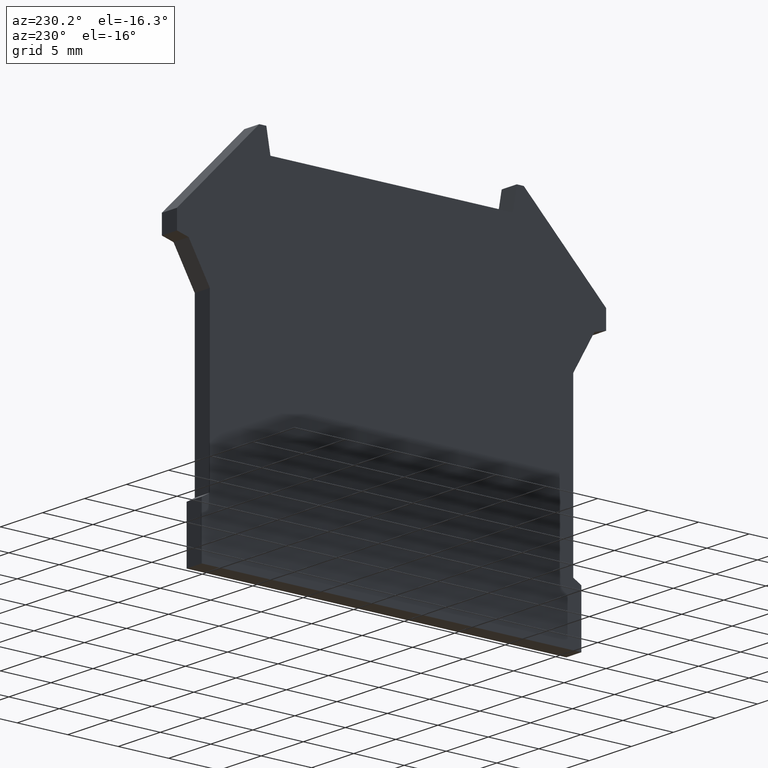
[diagram: clean part render]
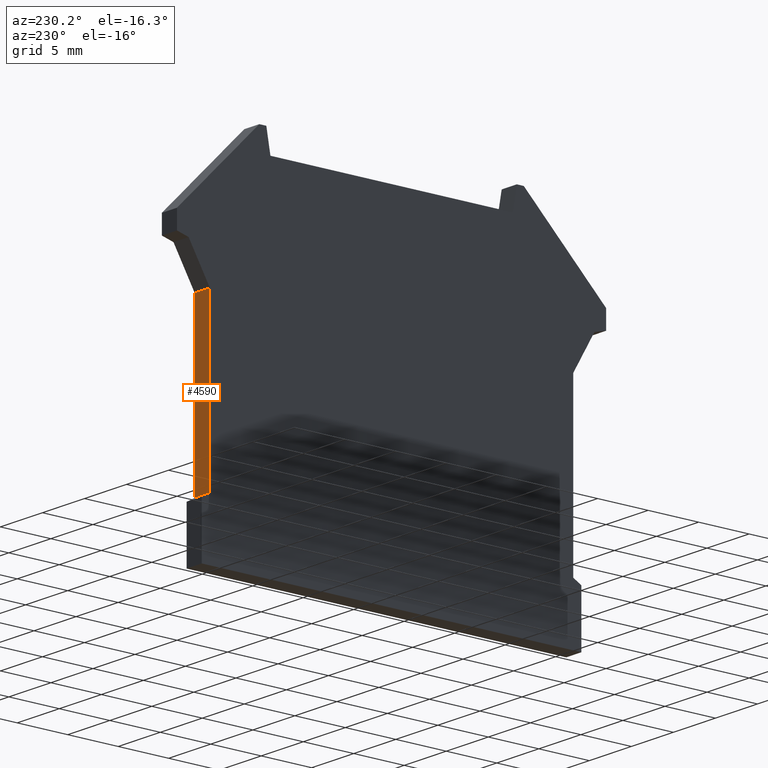
[diagram: same view with one face highlighted and labeled with its STEP entity id]
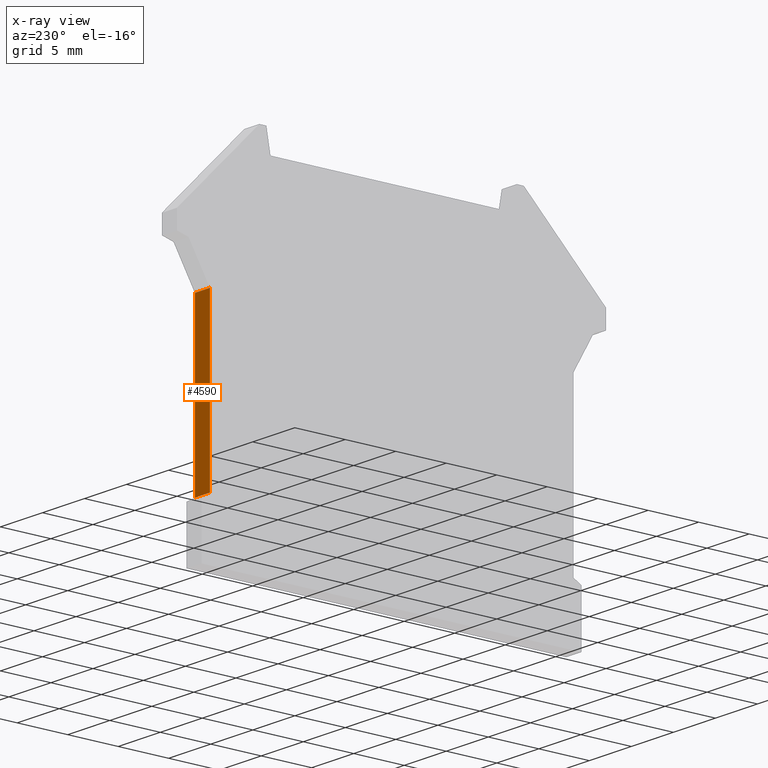
[diagram: x-ray of the same camera — body ghosted, the highlighted face saturated]
A machine part, auxiliary view. The second image highlights one B-rep face of the part: STEP entity #4590.
The next image is the same camera in x-ray: the body ghosted, the highlighted face saturated — about 0% of this face is hidden behind the body in this view.
In plain terms, the highlighted planar face has unit normal (0, 1, 0).
Its self-contained STEP definition (entity closure, byte-faithful):
#520=CARTESIAN_POINT('',(47.5443975377984,234.369981060144,-3.3));
#530=VERTEX_POINT('',#520);
#560=CARTESIAN_POINT('',(47.5443975377984,0.,-3.3));
#570=DIRECTION('',(0.,1.,0.));
#580=VECTOR('',#570,1.);
#590=LINE('',#560,#580);
#600=CARTESIAN_POINT('',(47.5443975377984,250.608100844792,-3.3));
#610=VERTEX_POINT('',#600);
#620=EDGE_CURVE('',#530,#610,#590,.T.);
#2510=CARTESIAN_POINT('',(47.5443975377984,250.608100844792,-1.5));
#2520=VERTEX_POINT('',#2510);
#2550=CARTESIAN_POINT('',(47.5443975377984,0.,-1.5));
#2560=DIRECTION('',(0.,1.,0.));
#2570=VECTOR('',#2560,1.);
#2580=LINE('',#2550,#2570);
#2590=CARTESIAN_POINT('',(47.5443975377984,234.369981060144,-1.5));
#2600=VERTEX_POINT('',#2590);
#2610=EDGE_CURVE('',#2600,#2520,#2580,.T.);
#4380=CARTESIAN_POINT('',(47.5443975377984,234.369981060144,0.));
#4390=DIRECTION('',(1.,0.,0.));
#4400=DIRECTION('',(0.,-1.,0.));
#4410=AXIS2_PLACEMENT_3D('',#4380,#4390,#4400);
#4420=PLANE('',#4410);
#4430=CARTESIAN_POINT('',(47.5443975377984,250.608100844792,0.));
#4440=DIRECTION('',(0.,0.,-1.));
#4450=VECTOR('',#4440,1.);
#4460=LINE('',#4430,#4450);
#4470=EDGE_CURVE('',#2520,#610,#4460,.T.);
#4480=ORIENTED_EDGE('',*,*,#4470,.F.);
#4490=ORIENTED_EDGE('',*,*,#620,.T.);
#4500=CARTESIAN_POINT('',(47.5443975377984,234.369981060144,0.));
#4510=DIRECTION('',(0.,0.,1.));
#4520=VECTOR('',#4510,1.);
#4530=LINE('',#4500,#4520);
#4540=EDGE_CURVE('',#530,#2600,#4530,.T.);
#4550=ORIENTED_EDGE('',*,*,#4540,.F.);
#4560=ORIENTED_EDGE('',*,*,#2610,.F.);
#4570=EDGE_LOOP('',(#4560,#4550,#4490,#4480));
#4580=FACE_OUTER_BOUND('',#4570,.T.);
#4590=ADVANCED_FACE('',(#4580),#4420,.T.);